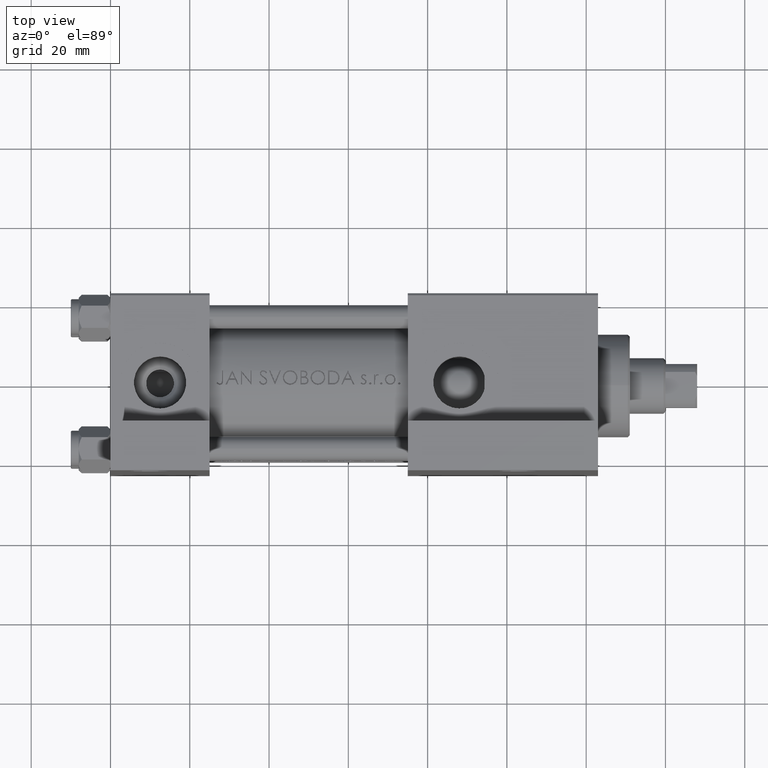
[diagram: clean part render]
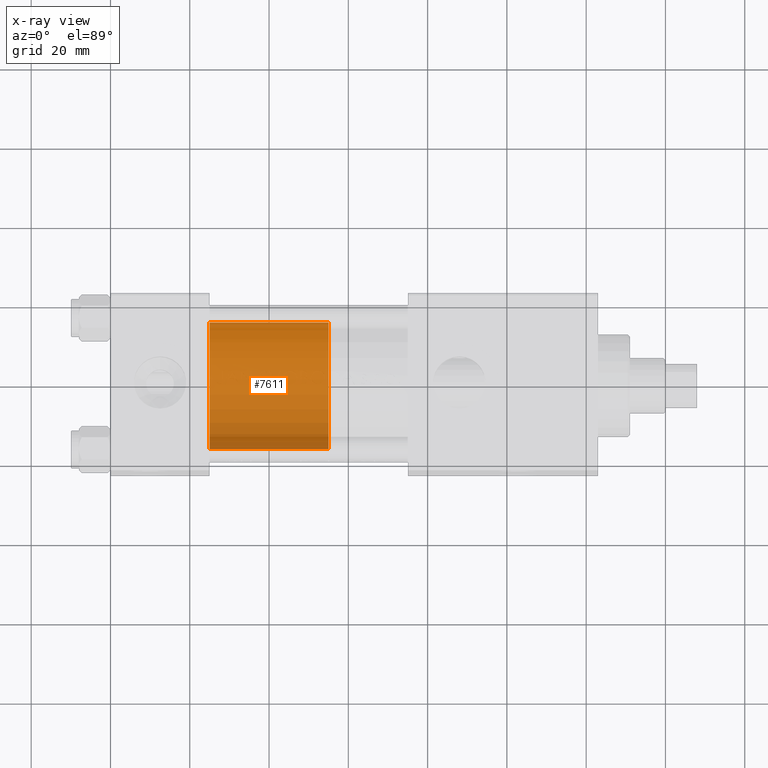
[diagram: x-ray — body ghosted, one internal face saturated and labeled with its STEP entity id]
A machine part, top view, then the same camera in x-ray: the body is ghosted and one INTERNAL B-rep face — a face not visible from any outside direction — is saturated and labeled: STEP entity #7611.
In plain terms, the highlighted cylindrical surface (partial cylindrical patch) has radius 16 mm, axis along (-1, 0, 0).
Its self-contained STEP definition (entity closure, byte-faithful):
#664 = DIRECTION ( 'NONE',  ( -1.000000000000000000, 0.000000000000000000, 0.000000000000000000 ) ) ;
#1771 = LINE ( 'NONE', #17179, #31940 ) ;
#2625 = CARTESIAN_POINT ( 'NONE',  ( 0.000000000000000000, 0.000000000000000000, 0.000000000000000000 ) ) ;
#3379 = VERTEX_POINT ( 'NONE', #36350 ) ;
#4113 = DIRECTION ( 'NONE',  ( 0.000000000000000000, 0.000000000000000000, 1.000000000000000000 ) ) ;
#5306 = ORIENTED_EDGE ( 'NONE', *, *, #46597, .T. ) ;
#6215 = ORIENTED_EDGE ( 'NONE', *, *, #42947, .F. ) ;
#7611 = ADVANCED_FACE ( 'NONE', ( #28185 ), #22581, .T. ) ;
#11794 = CIRCLE ( 'NONE', #44018, 16.00000000000000000 ) ;
#11864 = VECTOR ( 'NONE', #11998, 1000.000000000000000 ) ;
#11998 = DIRECTION ( 'NONE',  ( -0.000000000000000000, -0.000000000000000000, -1.000000000000000000 ) ) ;
#13738 = CARTESIAN_POINT ( 'NONE',  ( 0.000000000000000000, 0.000000000000000000, 30.00000000000000000 ) ) ;
#13878 = CARTESIAN_POINT ( 'NONE',  ( 16.00000000000000000, 1.959434878635765131E-15, 0.000000000000000000 ) ) ;
#14504 = VERTEX_POINT ( 'NONE', #40007 ) ;
#15850 = CARTESIAN_POINT ( 'NONE',  ( -16.00000000000000000, 0.000000000000000000, 30.00000000000000000 ) ) ;
#15908 = CARTESIAN_POINT ( 'NONE',  ( 0.000000000000000000, 0.000000000000000000, 30.00000000000000000 ) ) ;
#16408 = AXIS2_PLACEMENT_3D ( 'NONE', #2625, #25718, #29076 ) ;
#17179 = CARTESIAN_POINT ( 'NONE',  ( 16.00000000000000000, 1.959434878635765131E-15, 30.00000000000000000 ) ) ;
#17818 = ORIENTED_EDGE ( 'NONE', *, *, #40079, .T. ) ;
#22581 = CYLINDRICAL_SURFACE ( 'NONE', #36454, 16.00000000000000000 ) ;
#23314 = LINE ( 'NONE', #15850, #11864 ) ;
#24405 = DIRECTION ( 'NONE',  ( -0.000000000000000000, -0.000000000000000000, -1.000000000000000000 ) ) ;
#25718 = DIRECTION ( 'NONE',  ( 0.000000000000000000, 0.000000000000000000, 1.000000000000000000 ) ) ;
#27440 = VERTEX_POINT ( 'NONE', #36931 ) ;
#28185 = FACE_OUTER_BOUND ( 'NONE', #35019, .T. ) ;
#29076 = DIRECTION ( 'NONE',  ( 1.000000000000000000, 0.000000000000000000, 0.000000000000000000 ) ) ;
#29696 = ORIENTED_EDGE ( 'NONE', *, *, #39926, .F. ) ;
#29853 = DIRECTION ( 'NONE',  ( 1.000000000000000000, 0.000000000000000000, 0.000000000000000000 ) ) ;
#30186 = VERTEX_POINT ( 'NONE', #13878 ) ;
#31940 = VECTOR ( 'NONE', #24405, 1000.000000000000000 ) ;
#35019 = EDGE_LOOP ( 'NONE', ( #29696, #5306, #17818, #6215 ) ) ;
#36350 = CARTESIAN_POINT ( 'NONE',  ( -16.00000000000000000, 0.000000000000000000, 30.00000000000000000 ) ) ;
#36454 = AXIS2_PLACEMENT_3D ( 'NONE', #13738, #37244, #664 ) ;
#36931 = CARTESIAN_POINT ( 'NONE',  ( 16.00000000000000000, 1.959434878635765131E-15, 30.00000000000000000 ) ) ;
#37244 = DIRECTION ( 'NONE',  ( -0.000000000000000000, -0.000000000000000000, -1.000000000000000000 ) ) ;
#39926 = EDGE_CURVE ( 'NONE', #27440, #3379, #11794, .T. ) ;
#40007 = CARTESIAN_POINT ( 'NONE',  ( -16.00000000000000000, 0.000000000000000000, 0.000000000000000000 ) ) ;
#40079 = EDGE_CURVE ( 'NONE', #30186, #14504, #44828, .T. ) ;
#42947 = EDGE_CURVE ( 'NONE', #3379, #14504, #23314, .T. ) ;
#44018 = AXIS2_PLACEMENT_3D ( 'NONE', #15908, #4113, #29853 ) ;
#44828 = CIRCLE ( 'NONE', #16408, 16.00000000000000000 ) ;
#46597 = EDGE_CURVE ( 'NONE', #27440, #30186, #1771, .T. ) ;